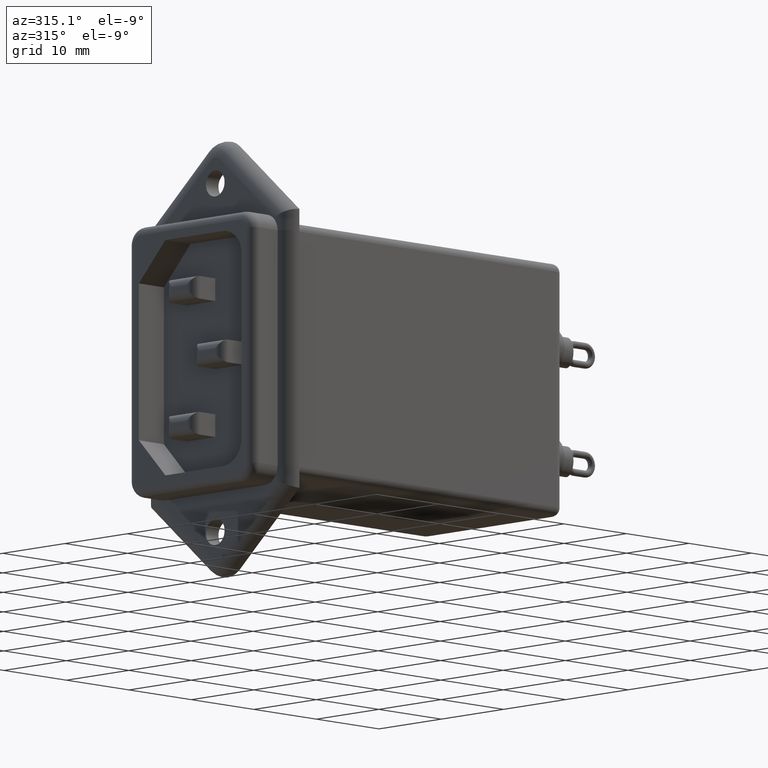
[diagram: clean part render]
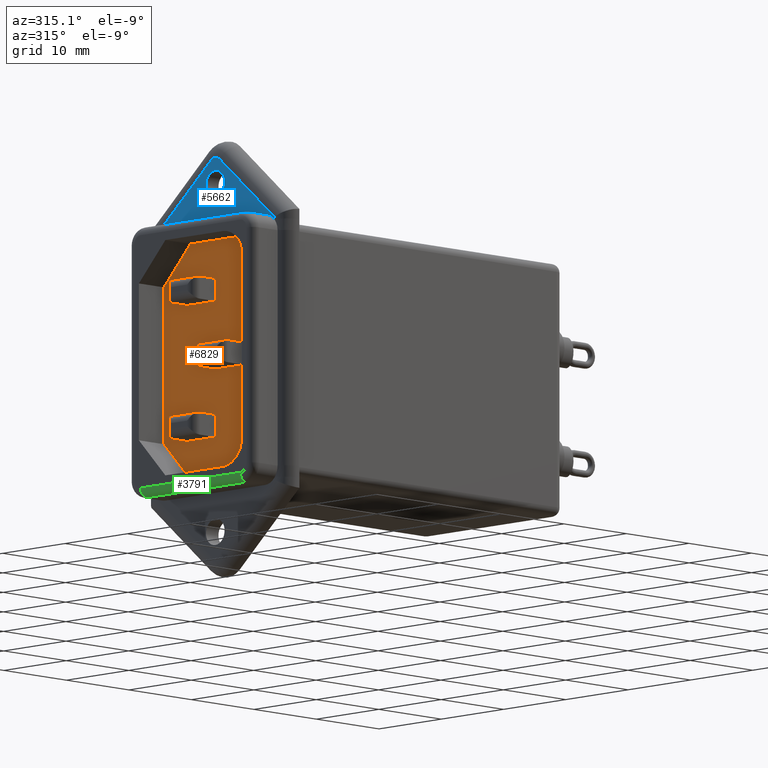
[diagram: same view with three faces highlighted in distinct colors, each labeled with its STEP entity id]
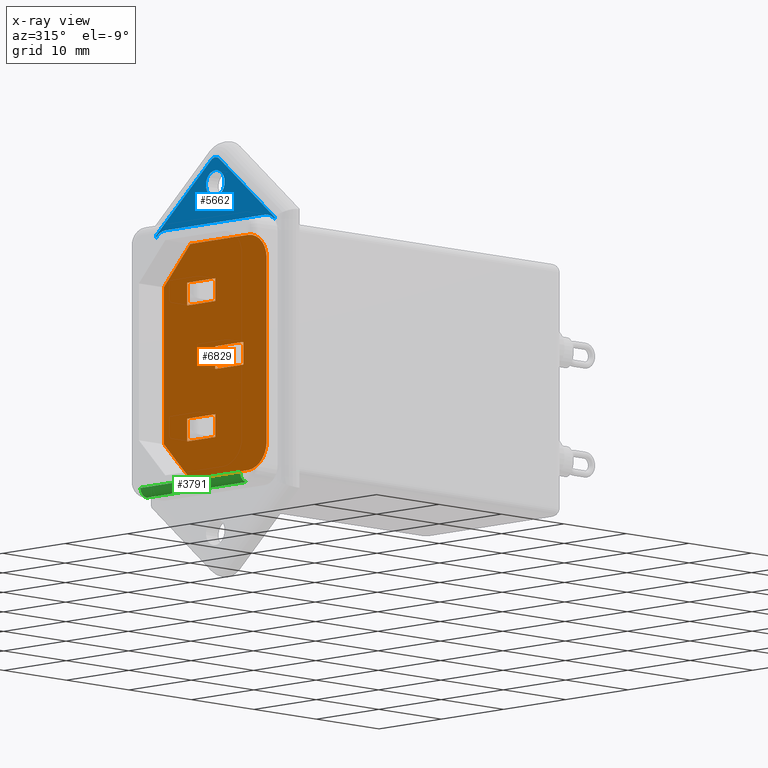
[diagram: x-ray of the same camera — body ghosted, the three highlighted faces saturated]
A machine part, auxiliary view with three faces highlighted in distinct colors.
The next image is the same camera in x-ray (body ghosted, the three faces saturated) — at least one of them is partly hidden behind the body in this view.
Their STEP definitions:

[orange] entity #6829 — the highlighted planar face has unit normal (-1, 0, 0).
#2 = VERTEX_POINT ( 'NONE', #5776 ) ;
#22 = VECTOR ( 'NONE', #3070, 1000.000000000000000 ) ;
#48 = ORIENTED_EDGE ( 'NONE', *, *, #7335, .F. ) ;
#79 = VECTOR ( 'NONE', #4843, 1000.000000000000100 ) ;
#168 = DIRECTION ( 'NONE',  ( 0.0000000000000000000, 0.0000000000000000000, 1.000000000000000000 ) ) ;
#175 = DIRECTION ( 'NONE',  ( 0.0000000000000000000, 0.0000000000000000000, -1.000000000000000000 ) ) ;
#244 = VERTEX_POINT ( 'NONE', #2388 ) ;
#256 = EDGE_CURVE ( 'NONE', #6370, #1521, #7109, .T. ) ;
#391 = VECTOR ( 'NONE', #5366, 1000.000000000000000 ) ;
#515 = ORIENTED_EDGE ( 'NONE', *, *, #7135, .F. ) ;
#525 = DIRECTION ( 'NONE',  ( 0.0000000000000000000, 0.0000000000000000000, 1.000000000000000000 ) ) ;
#576 = LINE ( 'NONE', #5337, #1547 ) ;
#697 = VECTOR ( 'NONE', #6787, 1000.000000000000000 ) ;
#722 = CARTESIAN_POINT ( 'NONE',  ( 4.000000000000000000, -5.500000000000005300, 6.399999999999979000 ) ) ;
#729 = CARTESIAN_POINT ( 'NONE',  ( 4.000000000000000000, -15.25000000000001400, 4.999999999999997300 ) ) ;
#757 = ORIENTED_EDGE ( 'NONE', *, *, #1250, .F. ) ;
#764 = LINE ( 'NONE', #7565, #5256 ) ;
#770 = VERTEX_POINT ( 'NONE', #2112 ) ;
#940 = CARTESIAN_POINT ( 'NONE',  ( 4.000000000000000000, -10.00000000000000500, 14.19999999999999800 ) ) ;
#993 = EDGE_CURVE ( 'NONE', #1521, #3852, #5591, .T. ) ;
#1052 = CARTESIAN_POINT ( 'NONE',  ( 4.000000000000000000, -1.749999999999998700, 24.49999999999999300 ) ) ;
#1073 = CARTESIAN_POINT ( 'NONE',  ( 4.000000000000000000, -14.50000000000000500, 14.20000000000000100 ) ) ;
#1179 = ORIENTED_EDGE ( 'NONE', *, *, #993, .F. ) ;
#1198 = EDGE_LOOP ( 'NONE', ( #5597, #1179, #1243, #1458, #48, #2421, #3207, #6156 ) ) ;
#1204 = DIRECTION ( 'NONE',  ( 0.0000000000000000000, -0.6866235329637170300, 0.7270131525498170200 ) ) ;
#1231 = FACE_BOUND ( 'NONE', #6549, .T. ) ;
#1232 = CARTESIAN_POINT ( 'NONE',  ( 4.000000000000000000, -14.50000000000000500, 16.80000000000000100 ) ) ;
#1243 = ORIENTED_EDGE ( 'NONE', *, *, #256, .F. ) ;
#1250 = EDGE_CURVE ( 'NONE', #2, #2109, #4104, .T. ) ;
#1262 = DIRECTION ( 'NONE',  ( 1.000000000000000000, -0.0000000000000000000, -0.0000000000000000000 ) ) ;
#1291 = VERTEX_POINT ( 'NONE', #7337 ) ;
#1416 = ORIENTED_EDGE ( 'NONE', *, *, #6686, .F. ) ;
#1432 = VECTOR ( 'NONE', #2628, 1000.000000000000000 ) ;
#1458 = ORIENTED_EDGE ( 'NONE', *, *, #3563, .F. ) ;
#1483 = EDGE_CURVE ( 'NONE', #244, #1291, #576, .T. ) ;
#1508 = EDGE_CURVE ( 'NONE', #3730, #2083, #4990, .T. ) ;
#1521 = VERTEX_POINT ( 'NONE', #7154 ) ;
#1539 = VECTOR ( 'NONE', #4360, 1000.000000000000000 ) ;
#1547 = VECTOR ( 'NONE', #5319, 1000.000000000000000 ) ;
#1581 = DIRECTION ( 'NONE',  ( 0.0000000000000000000, -1.000000000000000000, 7.709882115452475200E-016 ) ) ;
#1700 = EDGE_CURVE ( 'NONE', #2109, #3931, #2311, .T. ) ;
#1710 = CARTESIAN_POINT ( 'NONE',  ( 4.000000000000000000, -1.750000000000000000, 24.49999999999999300 ) ) ;
#1756 = DIRECTION ( 'NONE',  ( 1.000000000000000000, -0.0000000000000000000, -0.0000000000000000000 ) ) ;
#1835 = LINE ( 'NONE', #5996, #3640 ) ;
#1922 = CARTESIAN_POINT ( 'NONE',  ( 4.000000000000000000, -6.000000000000003600, 28.99999999999998900 ) ) ;
#2059 = EDGE_CURVE ( 'NONE', #5029, #3730, #7719, .T. ) ;
#2083 = VERTEX_POINT ( 'NONE', #6760 ) ;
#2109 = VERTEX_POINT ( 'NONE', #1232 ) ;
#2112 = CARTESIAN_POINT ( 'NONE',  ( 4.000000000000000000, -18.25000000000001400, 4.999999999999997300 ) ) ;
#2144 = DIRECTION ( 'NONE',  ( 0.0000000000000000000, 0.0000000000000000000, -1.000000000000000000 ) ) ;
#2201 = ORIENTED_EDGE ( 'NONE', *, *, #6180, .F. ) ;
#2237 = ORIENTED_EDGE ( 'NONE', *, *, #5037, .F. ) ;
#2292 = EDGE_LOOP ( 'NONE', ( #7310, #7173, #4971, #1416 ) ) ;
#2311 = LINE ( 'NONE', #3190, #2706 ) ;
#2324 = VERTEX_POINT ( 'NONE', #5743 ) ;
#2388 = CARTESIAN_POINT ( 'NONE',  ( 4.000000000000000000, -10.00000000000000500, 8.999999999999978700 ) ) ;
#2389 = DIRECTION ( 'NONE',  ( 0.0000000000000000000, 0.0000000000000000000, -1.000000000000000000 ) ) ;
#2404 = VECTOR ( 'NONE', #4433, 1000.000000000000000 ) ;
#2421 = ORIENTED_EDGE ( 'NONE', *, *, #4667, .F. ) ;
#2453 = LINE ( 'NONE', #2565, #1432 ) ;
#2500 = CIRCLE ( 'NONE', #4500, 2.999999999999999100 ) ;
#2565 = CARTESIAN_POINT ( 'NONE',  ( 4.000000000000000000, -10.00000000000000500, 6.399999999999979000 ) ) ;
#2628 = DIRECTION ( 'NONE',  ( 0.0000000000000000000, 0.0000000000000000000, 1.000000000000000000 ) ) ;
#2692 = CARTESIAN_POINT ( 'NONE',  ( 4.000000000000000000, -6.000000000000007100, 1.999999999999994900 ) ) ;
#2706 = VECTOR ( 'NONE', #4334, 1000.000000000000000 ) ;
#2770 = LINE ( 'NONE', #5326, #7474 ) ;
#2859 = CARTESIAN_POINT ( 'NONE',  ( 4.000000000000000000, -10.00000000000000700, 21.99999999999999300 ) ) ;
#2919 = VECTOR ( 'NONE', #4804, 1000.000000000000000 ) ;
#2925 = ORIENTED_EDGE ( 'NONE', *, *, #1508, .F. ) ;
#3070 = DIRECTION ( 'NONE',  ( 0.0000000000000000000, -0.0000000000000000000, 1.000000000000000000 ) ) ;
#3190 = CARTESIAN_POINT ( 'NONE',  ( 4.000000000000000000, -10.00000000000000500, 16.80000000000000100 ) ) ;
#3207 = ORIENTED_EDGE ( 'NONE', *, *, #7753, .F. ) ;
#3390 = AXIS2_PLACEMENT_3D ( 'NONE', #5821, #3845, #168 ) ;
#3422 = FACE_OUTER_BOUND ( 'NONE', #1198, .T. ) ;
#3521 = LINE ( 'NONE', #3602, #79 ) ;
#3543 = AXIS2_PLACEMENT_3D ( 'NONE', #729, #1262, #5608 ) ;
#3563 = EDGE_CURVE ( 'NONE', #5545, #6370, #6666, .T. ) ;
#3602 = CARTESIAN_POINT ( 'NONE',  ( 4.000000000000000000, -6.000000000000007100, 1.999999999999994900 ) ) ;
#3640 = VECTOR ( 'NONE', #2389, 1000.000000000000000 ) ;
#3670 = VERTEX_POINT ( 'NONE', #5796 ) ;
#3730 = VERTEX_POINT ( 'NONE', #6210 ) ;
#3731 = LINE ( 'NONE', #722, #1539 ) ;
#3845 = DIRECTION ( 'NONE',  ( -1.000000000000000000, 0.0000000000000000000, 0.0000000000000000000 ) ) ;
#3849 = VECTOR ( 'NONE', #1581, 1000.000000000000000 ) ;
#3852 = VERTEX_POINT ( 'NONE', #7071 ) ;
#3931 = VERTEX_POINT ( 'NONE', #5255 ) ;
#4028 = LINE ( 'NONE', #5708, #2404 ) ;
#4035 = VECTOR ( 'NONE', #4703, 1000.000000000000000 ) ;
#4104 = LINE ( 'NONE', #1073, #4695 ) ;
#4240 = EDGE_CURVE ( 'NONE', #4963, #4654, #4028, .T. ) ;
#4334 = DIRECTION ( 'NONE',  ( 0.0000000000000000000, 1.000000000000000000, 0.0000000000000000000 ) ) ;
#4360 = DIRECTION ( 'NONE',  ( 0.0000000000000000000, 0.0000000000000000000, -1.000000000000000000 ) ) ;
#4433 = DIRECTION ( 'NONE',  ( 0.0000000000000000000, -1.000000000000000000, 0.0000000000000000000 ) ) ;
#4500 = AXIS2_PLACEMENT_3D ( 'NONE', #5990, #1756, #7179 ) ;
#4515 = LINE ( 'NONE', #940, #3849 ) ;
#4592 = VECTOR ( 'NONE', #1204, 1000.000000000000100 ) ;
#4621 = CARTESIAN_POINT ( 'NONE',  ( 4.000000000000000000, -5.500000000000003600, 21.99999999999999300 ) ) ;
#4654 = VERTEX_POINT ( 'NONE', #6729 ) ;
#4667 = EDGE_CURVE ( 'NONE', #4792, #7879, #7454, .T. ) ;
#4695 = VECTOR ( 'NONE', #525, 1000.000000000000000 ) ;
#4703 = DIRECTION ( 'NONE',  ( 0.0000000000000000000, -1.000000000000000000, 0.0000000000000000000 ) ) ;
#4792 = VERTEX_POINT ( 'NONE', #6898 ) ;
#4804 = DIRECTION ( 'NONE',  ( 0.0000000000000000000, 1.000000000000000000, -3.281909278875038100E-016 ) ) ;
#4843 = DIRECTION ( 'NONE',  ( 0.0000000000000000000, 0.6866235329637170300, 0.7270131525498170200 ) ) ;
#4956 = VECTOR ( 'NONE', #2144, 1000.000000000000000 ) ;
#4963 = VERTEX_POINT ( 'NONE', #6331 ) ;
#4971 = ORIENTED_EDGE ( 'NONE', *, *, #1483, .F. ) ;
#4990 = LINE ( 'NONE', #5896, #391 ) ;
#5029 = VERTEX_POINT ( 'NONE', #4621 ) ;
#5037 = EDGE_CURVE ( 'NONE', #3670, #2, #4515, .T. ) ;
#5061 = FACE_BOUND ( 'NONE', #2292, .T. ) ;
#5197 = EDGE_CURVE ( 'NONE', #3852, #2324, #2500, .T. ) ;
#5255 = CARTESIAN_POINT ( 'NONE',  ( 4.000000000000000000, -10.00000000000000500, 16.80000000000000100 ) ) ;
#5256 = VECTOR ( 'NONE', #175, 1000.000000000000000 ) ;
#5304 = VERTEX_POINT ( 'NONE', #6781 ) ;
#5319 = DIRECTION ( 'NONE',  ( 0.0000000000000000000, 1.000000000000000000, 0.0000000000000000000 ) ) ;
#5326 = CARTESIAN_POINT ( 'NONE',  ( 4.000000000000000000, -10.00000000000000400, 24.59999999999999100 ) ) ;
#5337 = CARTESIAN_POINT ( 'NONE',  ( 4.000000000000000000, -10.00000000000000500, 8.999999999999978700 ) ) ;
#5366 = DIRECTION ( 'NONE',  ( 0.0000000000000000000, 1.334402673828314000E-015, 1.000000000000000000 ) ) ;
#5545 = VERTEX_POINT ( 'NONE', #5720 ) ;
#5591 = LINE ( 'NONE', #1922, #697 ) ;
#5597 = ORIENTED_EDGE ( 'NONE', *, *, #5197, .F. ) ;
#5608 = DIRECTION ( 'NONE',  ( 0.0000000000000000000, 1.156482317317871700E-015, 1.000000000000000000 ) ) ;
#5619 = CARTESIAN_POINT ( 'NONE',  ( 4.000000000000000000, -1.750000000000000000, 6.499999999999995600 ) ) ;
#5708 = CARTESIAN_POINT ( 'NONE',  ( 4.000000000000000000, -10.00000000000000500, 6.399999999999979000 ) ) ;
#5720 = CARTESIAN_POINT ( 'NONE',  ( 4.000000000000000000, -1.750000000000000000, 6.499999999999995600 ) ) ;
#5743 = CARTESIAN_POINT ( 'NONE',  ( 4.000000000000000000, -18.25000000000001400, 25.99999999999999300 ) ) ;
#5776 = CARTESIAN_POINT ( 'NONE',  ( 4.000000000000000000, -14.50000000000000500, 14.20000000000000100 ) ) ;
#5796 = CARTESIAN_POINT ( 'NONE',  ( 4.000000000000000000, -10.00000000000000500, 14.19999999999999800 ) ) ;
#5821 = CARTESIAN_POINT ( 'NONE',  ( 4.000000000000000000, -10.00000000000000000, -6.500000000000005300 ) ) ;
#5823 = CARTESIAN_POINT ( 'NONE',  ( 4.000000000000000000, -10.00000000000000500, 15.50000000000000000 ) ) ;
#5896 = CARTESIAN_POINT ( 'NONE',  ( 4.000000000000000000, -10.00000000000000400, 24.59999999999999100 ) ) ;
#5906 = EDGE_CURVE ( 'NONE', #1291, #4963, #3731, .T. ) ;
#5990 = CARTESIAN_POINT ( 'NONE',  ( 4.000000000000000000, -15.25000000000001400, 25.99999999999999300 ) ) ;
#5996 = CARTESIAN_POINT ( 'NONE',  ( 4.000000000000000000, -5.500000000000003600, 24.59999999999999100 ) ) ;
#6090 = EDGE_CURVE ( 'NONE', #2324, #770, #764, .T. ) ;
#6120 = FACE_BOUND ( 'NONE', #7604, .T. ) ;
#6156 = ORIENTED_EDGE ( 'NONE', *, *, #6090, .F. ) ;
#6180 = EDGE_CURVE ( 'NONE', #3931, #3670, #7480, .T. ) ;
#6210 = CARTESIAN_POINT ( 'NONE',  ( 4.000000000000000000, -10.00000000000000700, 21.99999999999999300 ) ) ;
#6331 = CARTESIAN_POINT ( 'NONE',  ( 4.000000000000000000, -5.500000000000005300, 6.399999999999979000 ) ) ;
#6370 = VERTEX_POINT ( 'NONE', #1052 ) ;
#6394 = EDGE_CURVE ( 'NONE', #2083, #5304, #2770, .T. ) ;
#6549 = EDGE_LOOP ( 'NONE', ( #2237, #2201, #7411, #757 ) ) ;
#6629 = DIRECTION ( 'NONE',  ( 0.0000000000000000000, 1.000000000000000000, 0.0000000000000000000 ) ) ;
#6666 = LINE ( 'NONE', #5619, #22 ) ;
#6686 = EDGE_CURVE ( 'NONE', #4654, #244, #2453, .T. ) ;
#6729 = CARTESIAN_POINT ( 'NONE',  ( 4.000000000000000000, -10.00000000000000500, 6.399999999999979000 ) ) ;
#6760 = CARTESIAN_POINT ( 'NONE',  ( 4.000000000000000000, -10.00000000000000400, 24.59999999999999100 ) ) ;
#6781 = CARTESIAN_POINT ( 'NONE',  ( 4.000000000000000000, -5.500000000000003600, 24.59999999999999100 ) ) ;
#6787 = DIRECTION ( 'NONE',  ( 0.0000000000000000000, -1.000000000000000000, 0.0000000000000000000 ) ) ;
#6829 = ADVANCED_FACE ( 'NONE', ( #1231, #6120, #5061, #3422 ), #7587, .T. ) ;
#6898 = CARTESIAN_POINT ( 'NONE',  ( 4.000000000000000000, -15.25000000000001400, 1.999999999999997800 ) ) ;
#6948 = ORIENTED_EDGE ( 'NONE', *, *, #6394, .F. ) ;
#7071 = CARTESIAN_POINT ( 'NONE',  ( 4.000000000000000000, -15.25000000000001400, 28.99999999999998900 ) ) ;
#7109 = LINE ( 'NONE', #1710, #4592 ) ;
#7135 = EDGE_CURVE ( 'NONE', #5304, #5029, #1835, .T. ) ;
#7154 = CARTESIAN_POINT ( 'NONE',  ( 4.000000000000000000, -6.000000000000003600, 28.99999999999998900 ) ) ;
#7173 = ORIENTED_EDGE ( 'NONE', *, *, #5906, .F. ) ;
#7179 = DIRECTION ( 'NONE',  ( 0.0000000000000000000, 0.0000000000000000000, 1.000000000000000000 ) ) ;
#7199 = ORIENTED_EDGE ( 'NONE', *, *, #2059, .F. ) ;
#7310 = ORIENTED_EDGE ( 'NONE', *, *, #4240, .F. ) ;
#7335 = EDGE_CURVE ( 'NONE', #7879, #5545, #3521, .T. ) ;
#7337 = CARTESIAN_POINT ( 'NONE',  ( 4.000000000000000000, -5.500000000000005300, 8.999999999999978700 ) ) ;
#7345 = CARTESIAN_POINT ( 'NONE',  ( 4.000000000000000000, -6.000000000000007100, 1.999999999999994900 ) ) ;
#7411 = ORIENTED_EDGE ( 'NONE', *, *, #1700, .F. ) ;
#7454 = LINE ( 'NONE', #7345, #2919 ) ;
#7474 = VECTOR ( 'NONE', #6629, 1000.000000000000000 ) ;
#7480 = LINE ( 'NONE', #5823, #4956 ) ;
#7495 = CIRCLE ( 'NONE', #3543, 2.999999999999999100 ) ;
#7565 = CARTESIAN_POINT ( 'NONE',  ( 4.000000000000000000, -18.25000000000001400, 4.999999999999997300 ) ) ;
#7587 = PLANE ( 'NONE',  #3390 ) ;
#7604 = EDGE_LOOP ( 'NONE', ( #2925, #7199, #515, #6948 ) ) ;
#7719 = LINE ( 'NONE', #2859, #4035 ) ;
#7753 = EDGE_CURVE ( 'NONE', #770, #4792, #7495, .T. ) ;
#7879 = VERTEX_POINT ( 'NONE', #2692 ) ;

[blue] entity #5662 — the highlighted planar face has unit normal (-1, 0, 0).
#14 = DIRECTION ( 'NONE',  ( 1.000000000000000000, -0.0000000000000000000, -0.0000000000000000000 ) ) ;
#54 = VERTEX_POINT ( 'NONE', #7709 ) ;
#100 = CARTESIAN_POINT ( 'NONE',  ( 4.000000000000000000, -10.65507623646205100, 38.25556278655230400 ) ) ;
#201 = DIRECTION ( 'NONE',  ( -1.000000000000000000, 0.0000000000000000000, 0.0000000000000000000 ) ) ;
#288 = EDGE_LOOP ( 'NONE', ( #944, #4530, #6769, #6313, #984, #4610, #6593, #1697, #2673 ) ) ;
#524 = CARTESIAN_POINT ( 'NONE',  ( 4.000000000000000000, -19.49999999999998900, 30.58697524632773200 ) ) ;
#646 = AXIS2_PLACEMENT_3D ( 'NONE', #3131, #14, #5480 ) ;
#679 = CARTESIAN_POINT ( 'NONE',  ( 4.000000000000000000, -19.49999999999998900, 30.32287565553230700 ) ) ;
#711 = LINE ( 'NONE', #100, #905 ) ;
#724 = EDGE_CURVE ( 'NONE', #6129, #54, #3166, .T. ) ;
#905 = VECTOR ( 'NONE', #6859, 1000.000000000000100 ) ;
#921 = DIRECTION ( 'NONE',  ( 0.0000000000000000000, 0.0000000000000000000, 1.000000000000000000 ) ) ;
#938 = EDGE_CURVE ( 'NONE', #7123, #6061, #1943, .T. ) ;
#944 = ORIENTED_EDGE ( 'NONE', *, *, #6827, .T. ) ;
#984 = ORIENTED_EDGE ( 'NONE', *, *, #724, .T. ) ;
#989 = LINE ( 'NONE', #5073, #5690 ) ;
#994 = ORIENTED_EDGE ( 'NONE', *, *, #4894, .F. ) ;
#1223 = CARTESIAN_POINT ( 'NONE',  ( 4.000000000000000000, -9.999999999999998200, 34.00000000000000000 ) ) ;
#1241 = DIRECTION ( 'NONE',  ( -1.000000000000000000, 0.0000000000000000000, 0.0000000000000000000 ) ) ;
#1257 = VERTEX_POINT ( 'NONE', #7205 ) ;
#1378 = EDGE_CURVE ( 'NONE', #3312, #1257, #989, .T. ) ;
#1496 = DIRECTION ( 'NONE',  ( 0.0000000000000000000, 1.000000000000000000, 1.734723475976806800E-016 ) ) ;
#1522 = AXIS2_PLACEMENT_3D ( 'NONE', #7692, #4002, #2206 ) ;
#1697 = ORIENTED_EDGE ( 'NONE', *, *, #3034, .T. ) ;
#1796 = CIRCLE ( 'NONE', #3677, 0.9999999999999870100 ) ;
#1852 = CARTESIAN_POINT ( 'NONE',  ( 4.000000000000000000, -0.5000000000000010000, -0.5000000000000065500 ) ) ;
#1853 = CARTESIAN_POINT ( 'NONE',  ( 4.000000000000000000, -10.65507623646206000, 38.25556278655230400 ) ) ;
#1943 = LINE ( 'NONE', #1852, #2313 ) ;
#1986 = CARTESIAN_POINT ( 'NONE',  ( 4.000000000000000000, -19.49999999999998900, 31.50000000000000000 ) ) ;
#2008 = CARTESIAN_POINT ( 'NONE',  ( 4.000000000000000000, -10.00000000000000000, 38.49999999999998600 ) ) ;
#2157 = DIRECTION ( 'NONE',  ( 0.0000000000000000000, 0.0000000000000000000, 1.000000000000000000 ) ) ;
#2206 = DIRECTION ( 'NONE',  ( 0.0000000000000000000, 0.0000000000000000000, 1.000000000000000000 ) ) ;
#2247 = DIRECTION ( 'NONE',  ( 0.0000000000000000000, -2.032879073410320300E-016, -1.000000000000000000 ) ) ;
#2263 = DIRECTION ( 'NONE',  ( 0.0000000000000000000, 0.7555627865523071300, -0.6550762364620722500 ) ) ;
#2313 = VECTOR ( 'NONE', #2247, 1000.000000000000000 ) ;
#2488 = ORIENTED_EDGE ( 'NONE', *, *, #7925, .F. ) ;
#2504 = VERTEX_POINT ( 'NONE', #524 ) ;
#2567 = EDGE_CURVE ( 'NONE', #54, #7123, #6925, .T. ) ;
#2644 = DIRECTION ( 'NONE',  ( 0.0000000000000000000, 0.0000000000000000000, 1.000000000000000000 ) ) ;
#2673 = ORIENTED_EDGE ( 'NONE', *, *, #1378, .F. ) ;
#2675 = CARTESIAN_POINT ( 'NONE',  ( 4.000000000000000000, -0.4999999999999940600, 30.58697524632773200 ) ) ;
#2825 = AXIS2_PLACEMENT_3D ( 'NONE', #7539, #201, #5052 ) ;
#2942 = CIRCLE ( 'NONE', #646, 2.000000000000001800 ) ;
#2958 = FACE_OUTER_BOUND ( 'NONE', #288, .T. ) ;
#3034 = EDGE_CURVE ( 'NONE', #6061, #1257, #2942, .T. ) ;
#3131 = CARTESIAN_POINT ( 'NONE',  ( 4.000000000000000000, -2.000000000000003600, 28.99999999999999600 ) ) ;
#3166 = CIRCLE ( 'NONE', #7052, 0.9999999999999870100 ) ;
#3227 = CARTESIAN_POINT ( 'NONE',  ( 4.000000000000000000, -0.4999999999999950000, 30.32287565553228200 ) ) ;
#3232 = CARTESIAN_POINT ( 'NONE',  ( 4.000000000000000000, -9.999999999999998200, 37.00000000000000700 ) ) ;
#3237 = AXIS2_PLACEMENT_3D ( 'NONE', #4566, #4479, #921 ) ;
#3312 = VERTEX_POINT ( 'NONE', #6455 ) ;
#3402 = CARTESIAN_POINT ( 'NONE',  ( 4.000000000000000000, -10.00000000000000000, -6.500000000000005300 ) ) ;
#3677 = AXIS2_PLACEMENT_3D ( 'NONE', #7583, #5742, #2644 ) ;
#3685 = CARTESIAN_POINT ( 'NONE',  ( 4.000000000000000000, -10.00000000000000000, 37.50000000000000000 ) ) ;
#4002 = DIRECTION ( 'NONE',  ( -1.000000000000000000, 0.0000000000000000000, 0.0000000000000000000 ) ) ;
#4061 = LINE ( 'NONE', #1986, #6202 ) ;
#4106 = EDGE_CURVE ( 'NONE', #2504, #6606, #711, .T. ) ;
#4298 = VERTEX_POINT ( 'NONE', #3232 ) ;
#4300 = VECTOR ( 'NONE', #2263, 1000.000000000000100 ) ;
#4333 = EDGE_CURVE ( 'NONE', #5979, #2504, #4061, .T. ) ;
#4479 = DIRECTION ( 'NONE',  ( 1.000000000000000000, -0.0000000000000000000, -0.0000000000000000000 ) ) ;
#4530 = ORIENTED_EDGE ( 'NONE', *, *, #4333, .T. ) ;
#4566 = CARTESIAN_POINT ( 'NONE',  ( 4.000000000000000000, -18.00000000000000700, 28.99999999999999300 ) ) ;
#4610 = ORIENTED_EDGE ( 'NONE', *, *, #2567, .T. ) ;
#4894 = EDGE_CURVE ( 'NONE', #4298, #6538, #7843, .T. ) ;
#4944 = EDGE_CURVE ( 'NONE', #6606, #6129, #1796, .T. ) ;
#4947 = DIRECTION ( 'NONE',  ( 0.0000000000000000000, 0.0000000000000000000, 1.000000000000000000 ) ) ;
#5052 = DIRECTION ( 'NONE',  ( 0.0000000000000000000, 0.0000000000000000000, 1.000000000000000000 ) ) ;
#5073 = CARTESIAN_POINT ( 'NONE',  ( 4.000000000000000000, -3.796405077356795100E-015, 31.00000000000000000 ) ) ;
#5178 = FACE_BOUND ( 'NONE', #5283, .T. ) ;
#5254 = CIRCLE ( 'NONE', #3237, 1.999999999999998200 ) ;
#5283 = EDGE_LOOP ( 'NONE', ( #994, #2488 ) ) ;
#5296 = PLANE ( 'NONE',  #7922 ) ;
#5480 = DIRECTION ( 'NONE',  ( 0.0000000000000000000, -1.734723475976805500E-015, 1.000000000000000000 ) ) ;
#5662 = ADVANCED_FACE ( 'NONE', ( #2958, #5178 ), #5296, .T. ) ;
#5690 = VECTOR ( 'NONE', #1496, 1000.000000000000000 ) ;
#5742 = DIRECTION ( 'NONE',  ( -1.000000000000000000, 0.0000000000000000000, 0.0000000000000000000 ) ) ;
#5979 = VERTEX_POINT ( 'NONE', #679 ) ;
#6061 = VERTEX_POINT ( 'NONE', #3227 ) ;
#6129 = VERTEX_POINT ( 'NONE', #2008 ) ;
#6202 = VECTOR ( 'NONE', #6293, 1000.000000000000000 ) ;
#6293 = DIRECTION ( 'NONE',  ( 0.0000000000000000000, 2.168404344971008900E-016, 1.000000000000000000 ) ) ;
#6313 = ORIENTED_EDGE ( 'NONE', *, *, #4944, .T. ) ;
#6455 = CARTESIAN_POINT ( 'NONE',  ( 4.000000000000000000, -18.00000000000000700, 30.99999999999999600 ) ) ;
#6538 = VERTEX_POINT ( 'NONE', #1223 ) ;
#6593 = ORIENTED_EDGE ( 'NONE', *, *, #938, .T. ) ;
#6606 = VERTEX_POINT ( 'NONE', #1853 ) ;
#6616 = CIRCLE ( 'NONE', #1522, 1.500000000000001300 ) ;
#6769 = ORIENTED_EDGE ( 'NONE', *, *, #4106, .T. ) ;
#6827 = EDGE_CURVE ( 'NONE', #3312, #5979, #5254, .T. ) ;
#6859 = DIRECTION ( 'NONE',  ( 0.0000000000000000000, 0.7555627865523071300, 0.6550762364620722500 ) ) ;
#6925 = LINE ( 'NONE', #7253, #4300 ) ;
#7052 = AXIS2_PLACEMENT_3D ( 'NONE', #3685, #1241, #4947 ) ;
#7123 = VERTEX_POINT ( 'NONE', #2675 ) ;
#7205 = CARTESIAN_POINT ( 'NONE',  ( 4.000000000000000000, -2.000000000000004000, 31.00000000000000000 ) ) ;
#7253 = CARTESIAN_POINT ( 'NONE',  ( 4.000000000000000000, 0.1898475270758620500, 29.98887442689538900 ) ) ;
#7539 = CARTESIAN_POINT ( 'NONE',  ( 4.000000000000000000, -9.999999999999998200, 35.50000000000000700 ) ) ;
#7583 = CARTESIAN_POINT ( 'NONE',  ( 4.000000000000000000, -10.00000000000000000, 37.50000000000000000 ) ) ;
#7692 = CARTESIAN_POINT ( 'NONE',  ( 4.000000000000000000, -9.999999999999998200, 35.50000000000000700 ) ) ;
#7709 = CARTESIAN_POINT ( 'NONE',  ( 4.000000000000000000, -9.344923763537929400, 38.25556278655230400 ) ) ;
#7770 = DIRECTION ( 'NONE',  ( -1.000000000000000000, 0.0000000000000000000, 0.0000000000000000000 ) ) ;
#7843 = CIRCLE ( 'NONE', #2825, 1.500000000000001300 ) ;
#7922 = AXIS2_PLACEMENT_3D ( 'NONE', #3402, #7770, #2157 ) ;
#7925 = EDGE_CURVE ( 'NONE', #6538, #4298, #6616, .T. ) ;

[green] entity #3791 — the highlighted cylindrical surface (edge-blend (fillet) strip) has radius 1 mm, axis along (0, -1, -0).
#66 = EDGE_CURVE ( 'NONE', #5816, #590, #4108, .T. ) ;
#127 = CARTESIAN_POINT ( 'NONE',  ( 1.000000000000000000, -2.000000000000000000, 0.9999999999999995600 ) ) ;
#488 = CARTESIAN_POINT ( 'NONE',  ( 1.000000000000000000, -18.00000000000000400, -2.204364238465235800E-015 ) ) ;
#491 = AXIS2_PLACEMENT_3D ( 'NONE', #1864, #6776, #1286 ) ;
#517 = CARTESIAN_POINT ( 'NONE',  ( 0.0000000000000000000, -18.00000000000000400, 0.9999999999999978900 ) ) ;
#590 = VERTEX_POINT ( 'NONE', #488 ) ;
#631 = CARTESIAN_POINT ( 'NONE',  ( 0.0000000000000000000, -18.00000000000000400, 0.9999999999999978900 ) ) ;
#720 = CYLINDRICAL_SURFACE ( 'NONE', #491, 1.000000000000000000 ) ;
#1020 = ORIENTED_EDGE ( 'NONE', *, *, #6720, .F. ) ;
#1286 = DIRECTION ( 'NONE',  ( 0.0000000000000000000, 1.224646799147353200E-016, -1.000000000000000000 ) ) ;
#1606 = EDGE_CURVE ( 'NONE', #5153, #5816, #4772, .T. ) ;
#1864 = CARTESIAN_POINT ( 'NONE',  ( 1.000000000000000000, -1.224646799147353200E-016, 1.000000000000000000 ) ) ;
#2416 = VERTEX_POINT ( 'NONE', #5085 ) ;
#2535 = CARTESIAN_POINT ( 'NONE',  ( 1.000000000000000000, -2.000000000000000000, -2.449293598294706400E-016 ) ) ;
#3457 = CARTESIAN_POINT ( 'NONE',  ( 0.0000000000000000000, -2.000000000000000000, 0.9999999999999997800 ) ) ;
#3791 = ADVANCED_FACE ( 'NONE', ( #4130 ), #720, .T. ) ;
#3805 = AXIS2_PLACEMENT_3D ( 'NONE', #127, #5010, #7407 ) ;
#4108 = CIRCLE ( 'NONE', #5856, 1.000000000000000000 ) ;
#4130 = FACE_OUTER_BOUND ( 'NONE', #4362, .T. ) ;
#4362 = EDGE_LOOP ( 'NONE', ( #6237, #1020, #4461, #5129 ) ) ;
#4461 = ORIENTED_EDGE ( 'NONE', *, *, #66, .F. ) ;
#4772 = LINE ( 'NONE', #517, #7015 ) ;
#4783 = DIRECTION ( 'NONE',  ( -0.0000000000000000000, -1.000000000000000000, -1.224646799147353200E-016 ) ) ;
#4943 = DIRECTION ( 'NONE',  ( 0.0000000000000000000, 1.000000000000000000, 1.224646799147353200E-016 ) ) ;
#5010 = DIRECTION ( 'NONE',  ( -0.0000000000000000000, -1.000000000000000000, -0.0000000000000000000 ) ) ;
#5085 = CARTESIAN_POINT ( 'NONE',  ( 1.000000000000000000, -2.000000000000000000, -2.449293598294706400E-016 ) ) ;
#5129 = ORIENTED_EDGE ( 'NONE', *, *, #1606, .F. ) ;
#5153 = VERTEX_POINT ( 'NONE', #3457 ) ;
#5328 = DIRECTION ( 'NONE',  ( 0.0000000000000000000, 0.0000000000000000000, -1.000000000000000000 ) ) ;
#5657 = VECTOR ( 'NONE', #4943, 1000.000000000000000 ) ;
#5816 = VERTEX_POINT ( 'NONE', #631 ) ;
#5856 = AXIS2_PLACEMENT_3D ( 'NONE', #6560, #5978, #5328 ) ;
#5978 = DIRECTION ( 'NONE',  ( -0.0000000000000000000, -1.000000000000000000, -0.0000000000000000000 ) ) ;
#6229 = CIRCLE ( 'NONE', #3805, 1.000000000000000000 ) ;
#6237 = ORIENTED_EDGE ( 'NONE', *, *, #6669, .T. ) ;
#6560 = CARTESIAN_POINT ( 'NONE',  ( 1.000000000000000000, -18.00000000000000400, 0.9999999999999978900 ) ) ;
#6669 = EDGE_CURVE ( 'NONE', #5153, #2416, #6229, .T. ) ;
#6720 = EDGE_CURVE ( 'NONE', #590, #2416, #7665, .T. ) ;
#6776 = DIRECTION ( 'NONE',  ( 0.0000000000000000000, -1.000000000000000000, -1.224646799147353200E-016 ) ) ;
#7015 = VECTOR ( 'NONE', #4783, 1000.000000000000000 ) ;
#7407 = DIRECTION ( 'NONE',  ( 0.0000000000000000000, 0.0000000000000000000, -1.000000000000000000 ) ) ;
#7665 = LINE ( 'NONE', #2535, #5657 ) ;